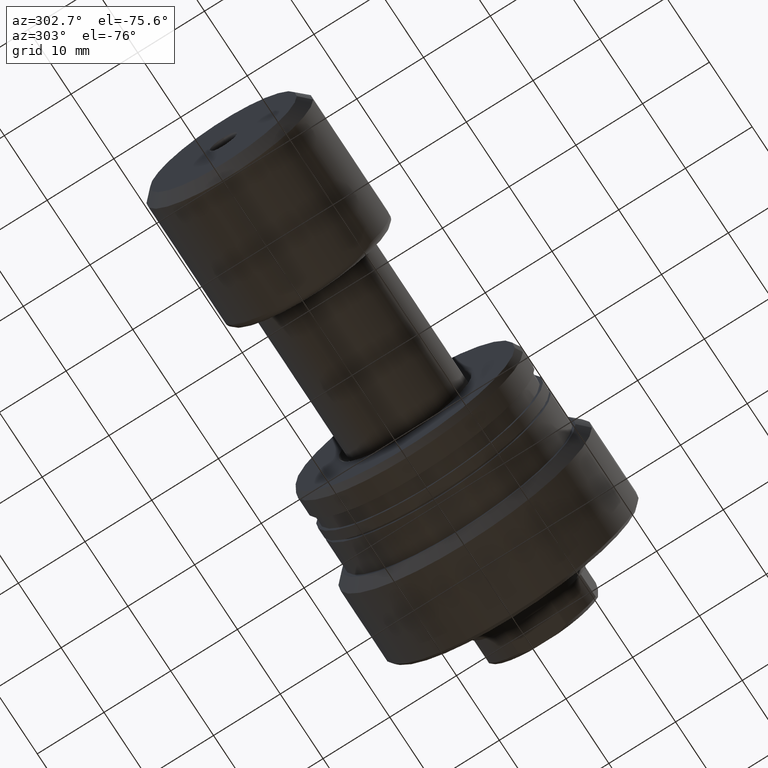
[diagram: clean part render]
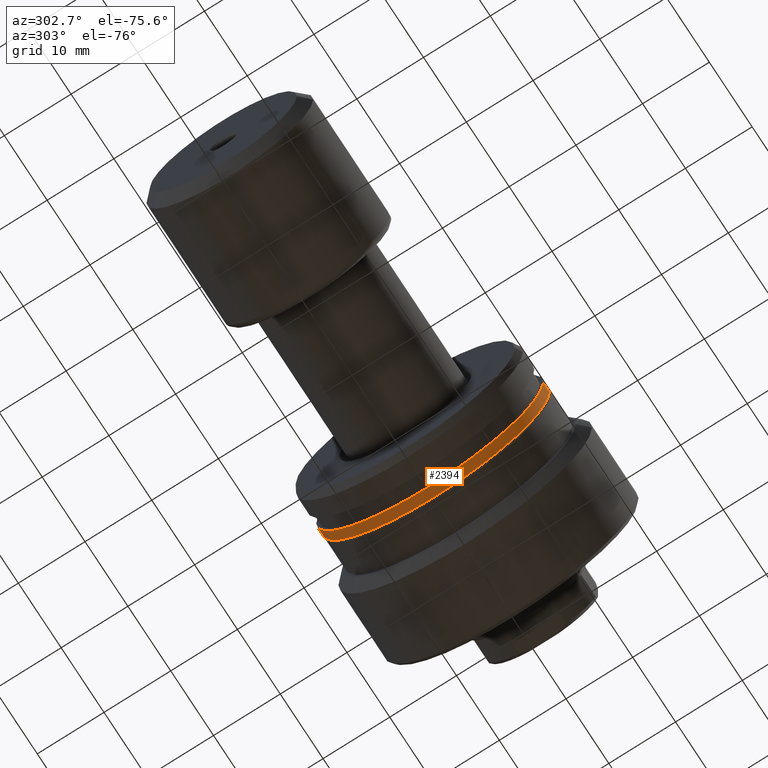
[diagram: same view with one face highlighted and labeled with its STEP entity id]
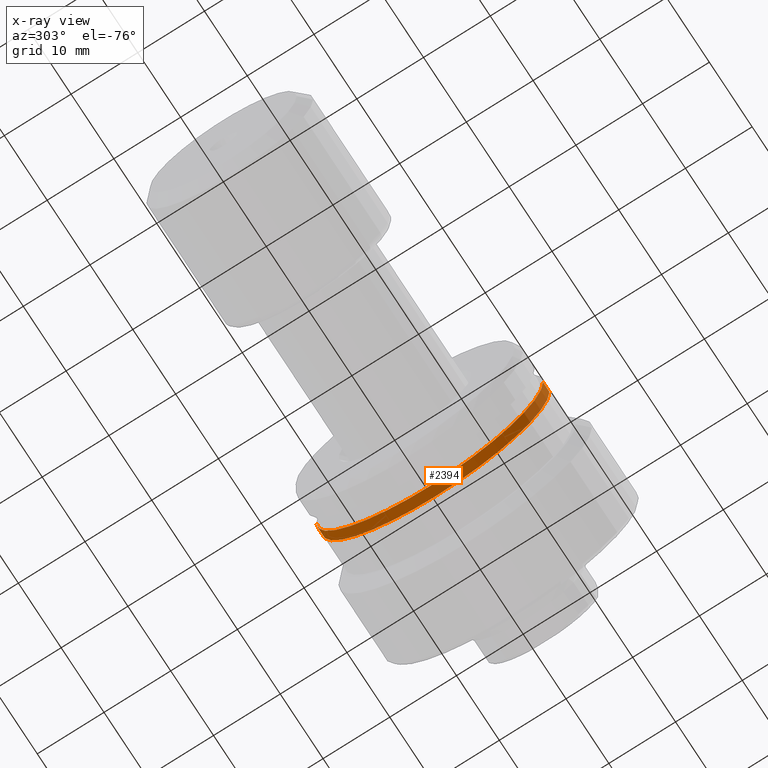
[diagram: x-ray of the same camera — body ghosted, the highlighted face saturated]
A machine part, auxiliary view. The second image highlights one B-rep face of the part: STEP entity #2394.
The next image is the same camera in x-ray: the body ghosted, the highlighted face saturated — about 0% of this face is hidden behind the body in this view.
In plain terms, the highlighted cylindrical surface (partial cylindrical patch) has radius 17 mm, axis along (-1, 0, 0).
Its self-contained STEP definition (entity closure, byte-faithful):
#2 = CARTESIAN_POINT ( 'NONE',  ( -19.29999999999995808, 16.99999999999998224, 2.081899558550499885E-15 ) ) ;
#42 = ORIENTED_EDGE ( 'NONE', *, *, #1947, .T. ) ;
#216 = DIRECTION ( 'NONE',  ( -1.000000000000000000, 9.810081908519753690E-16, -0.000000000000000000 ) ) ;
#311 = ORIENTED_EDGE ( 'NONE', *, *, #2417, .F. ) ;
#383 = CYLINDRICAL_SURFACE ( 'NONE', #961, 16.99999999999999289 ) ;
#416 = DIRECTION ( 'NONE',  ( -1.020425574104004591E-15, -1.000000000000000000, 0.000000000000000000 ) ) ;
#509 = VERTEX_POINT ( 'NONE', #1098 ) ;
#530 = CIRCLE ( 'NONE', #917, 16.99999999999999289 ) ;
#545 = EDGE_LOOP ( 'NONE', ( #2116, #42, #574, #311 ) ) ;
#559 = DIRECTION ( 'NONE',  ( -1.000000000000000000, 9.810081908519753690E-16, -0.000000000000000000 ) ) ;
#574 = ORIENTED_EDGE ( 'NONE', *, *, #1801, .T. ) ;
#582 = VERTEX_POINT ( 'NONE', #2 ) ;
#608 = EDGE_CURVE ( 'NONE', #582, #2070, #1559, .T. ) ;
#655 = CIRCLE ( 'NONE', #1909, 16.99999999999999289 ) ;
#685 = VECTOR ( 'NONE', #1803, 1000.000000000000000 ) ;
#776 = CARTESIAN_POINT ( 'NONE',  ( -20.79999999999996874, 16.99999999999998224, 2.081899558550499885E-15 ) ) ;
#917 = AXIS2_PLACEMENT_3D ( 'NONE', #963, #559, #416 ) ;
#961 = AXIS2_PLACEMENT_3D ( 'NONE', #1140, #1989, #1432 ) ;
#963 = CARTESIAN_POINT ( 'NONE',  ( -19.29999999999997584, -1.077149227009689639E-14, 0.000000000000000000 ) ) ;
#1098 = CARTESIAN_POINT ( 'NONE',  ( -19.29999999999999361, -17.00000000000000355, 0.000000000000000000 ) ) ;
#1140 = CARTESIAN_POINT ( 'NONE',  ( -30.28002276692732408, 0.000000000000000000, 0.000000000000000000 ) ) ;
#1258 = CARTESIAN_POINT ( 'NONE',  ( -30.28002276692734185, -16.99999999999999289, 0.000000000000000000 ) ) ;
#1370 = CARTESIAN_POINT ( 'NONE',  ( -30.28002276692730632, 16.99999999999999289, 2.081899558550499885E-15 ) ) ;
#1432 = DIRECTION ( 'NONE',  ( -1.020425574104004591E-15, -1.000000000000000000, 0.000000000000000000 ) ) ;
#1445 = CARTESIAN_POINT ( 'NONE',  ( -20.79999999999998650, -9.299979983818927025E-15, 0.000000000000000000 ) ) ;
#1559 = LINE ( 'NONE', #1370, #2215 ) ;
#1619 = LINE ( 'NONE', #1258, #685 ) ;
#1801 = EDGE_CURVE ( 'NONE', #509, #1850, #1619, .T. ) ;
#1803 = DIRECTION ( 'NONE',  ( -1.000000000000000000, 9.810081908519753690E-16, -0.000000000000000000 ) ) ;
#1850 = VERTEX_POINT ( 'NONE', #2181 ) ;
#1909 = AXIS2_PLACEMENT_3D ( 'NONE', #1445, #2160, #1953 ) ;
#1947 = EDGE_CURVE ( 'NONE', #582, #509, #530, .T. ) ;
#1953 = DIRECTION ( 'NONE',  ( -1.020425574104004591E-15, -1.000000000000000000, 0.000000000000000000 ) ) ;
#1989 = DIRECTION ( 'NONE',  ( -1.000000000000000000, 9.810081908519753690E-16, -0.000000000000000000 ) ) ;
#2068 = FACE_OUTER_BOUND ( 'NONE', #545, .T. ) ;
#2070 = VERTEX_POINT ( 'NONE', #776 ) ;
#2116 = ORIENTED_EDGE ( 'NONE', *, *, #608, .F. ) ;
#2160 = DIRECTION ( 'NONE',  ( -1.000000000000000000, 9.810081908519753690E-16, -0.000000000000000000 ) ) ;
#2181 = CARTESIAN_POINT ( 'NONE',  ( -20.80000000000000426, -17.00000000000000355, 0.000000000000000000 ) ) ;
#2215 = VECTOR ( 'NONE', #216, 1000.000000000000000 ) ;
#2394 = ADVANCED_FACE ( 'NONE', ( #2068 ), #383, .T. ) ;
#2417 = EDGE_CURVE ( 'NONE', #2070, #1850, #655, .T. ) ;